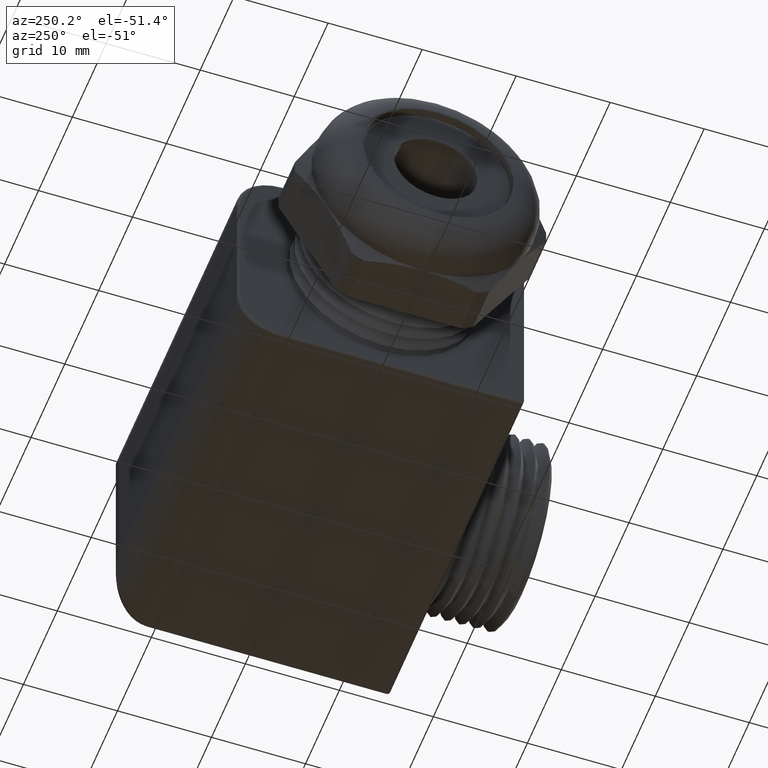
[diagram: clean part render]
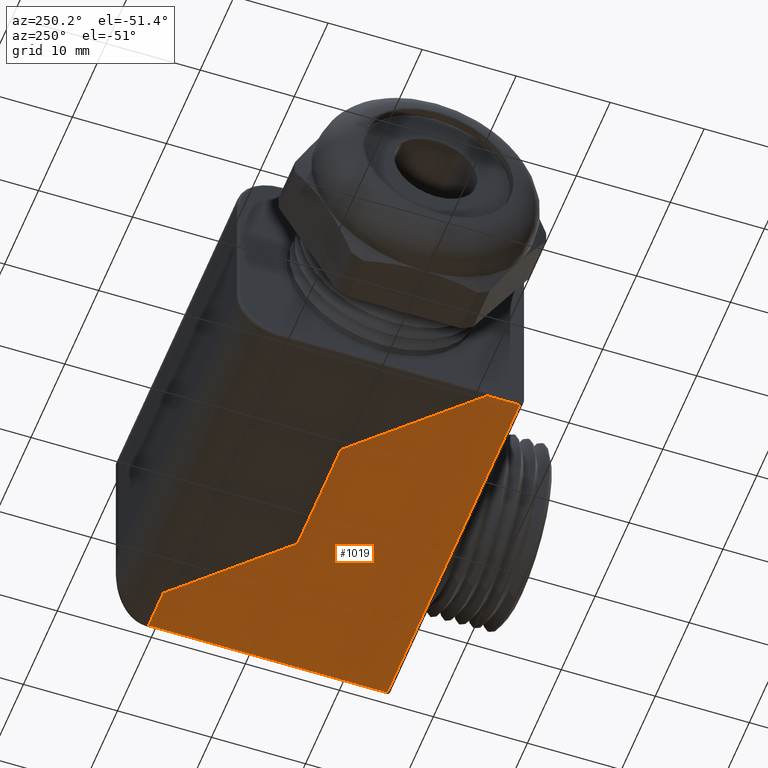
[diagram: same view with one face highlighted and labeled with its STEP entity id]
A machine part, auxiliary view. The second image highlights one B-rep face of the part: STEP entity #1019.
In plain terms, the highlighted planar face has unit normal (0, 0, 1).
Its self-contained STEP definition (entity closure, byte-faithful):
#877 = VERTEX_POINT ( 'NONE', #3125 ) ;
#1001 = EDGE_CURVE ( 'NONE', #1029, #1235, #3208, .T. ) ;
#1002 = ORIENTED_EDGE ( 'NONE', *, *, #1234, .F. ) ;
#1003 = ORIENTED_EDGE ( 'NONE', *, *, #1343, .F. ) ;
#1015 = EDGE_CURVE ( 'NONE', #877, #1029, #3186, .T. ) ;
#1018 = EDGE_LOOP ( 'NONE', ( #1023, #1026, #1034, #1021, #1022, #1002, #1003 ) ) ;
#1019 = ADVANCED_FACE ( 'NONE', ( #3199 ), #3198, .F. ) ;
#1021 = ORIENTED_EDGE ( 'NONE', *, *, #1015, .T. ) ;
#1022 = ORIENTED_EDGE ( 'NONE', *, *, #1001, .T. ) ;
#1023 = ORIENTED_EDGE ( 'NONE', *, *, #1223, .F. ) ;
#1024 = EDGE_CURVE ( 'NONE', #1033, #877, #3332, .T. ) ;
#1026 = ORIENTED_EDGE ( 'NONE', *, *, #1027, .T. ) ;
#1027 = EDGE_CURVE ( 'NONE', #1143, #1033, #3327, .T. ) ;
#1029 = VERTEX_POINT ( 'NONE', #3318 ) ;
#1033 = VERTEX_POINT ( 'NONE', #3367 ) ;
#1034 = ORIENTED_EDGE ( 'NONE', *, *, #1024, .T. ) ;
#1143 = VERTEX_POINT ( 'NONE', #3601 ) ;
#1150 = VERTEX_POINT ( 'NONE', #3568 ) ;
#1223 = EDGE_CURVE ( 'NONE', #1143, #1150, #3611, .T. ) ;
#1232 = VERTEX_POINT ( 'NONE', #3812 ) ;
#1234 = EDGE_CURVE ( 'NONE', #1232, #1235, #3762, .T. ) ;
#1235 = VERTEX_POINT ( 'NONE', #3819 ) ;
#1343 = EDGE_CURVE ( 'NONE', #1150, #1232, #3959, .T. ) ;
#3125 = CARTESIAN_POINT ( 'NONE',  ( 1.555344632768362000, -0.5873446327683615700, -0.4700000000000000300 ) ) ;
#3186 = LINE ( 'NONE', #3202, #3201 ) ;
#3194 = DIRECTION ( 'NONE',  ( 1.000000000000000000, 0.0000000000000000000, 0.0000000000000000000 ) ) ;
#3195 = DIRECTION ( 'NONE',  ( 0.0000000000000000000, 0.0000000000000000000, 1.000000000000000000 ) ) ;
#3196 = CARTESIAN_POINT ( 'NONE',  ( 1.232614984114216400, -0.2370589800028675700, -0.4700000000000000300 ) ) ;
#3197 = AXIS2_PLACEMENT_3D ( 'NONE', #3196, #3195, #3194 ) ;
#3198 = PLANE ( 'NONE',  #3197 ) ;
#3199 = FACE_OUTER_BOUND ( 'NONE', #1018, .T. ) ;
#3200 = DIRECTION ( 'NONE',  ( -1.000000000000000000, -1.306687496969513600E-016, 0.0000000000000000000 ) ) ;
#3201 = VECTOR ( 'NONE', #3200, 39.37007874015748100 ) ;
#3202 = CARTESIAN_POINT ( 'NONE',  ( 0.0000000000000000000, -0.5873446327683616900, -0.4700000000000000300 ) ) ;
#3205 = DIRECTION ( 'NONE',  ( 0.0000000000000000000, 1.000000000000000000, 0.0000000000000000000 ) ) ;
#3206 = VECTOR ( 'NONE', #3205, 39.37007874015748100 ) ;
#3207 = CARTESIAN_POINT ( 'NONE',  ( 0.01265536723163842100, -0.2370589800028675700, -0.4700000000000000300 ) ) ;
#3208 = LINE ( 'NONE', #3207, #3206 ) ;
#3318 = CARTESIAN_POINT ( 'NONE',  ( 0.01265536723163842100, -0.5873446327683616900, -0.4700000000000000300 ) ) ;
#3319 = DIRECTION ( 'NONE',  ( 1.000000000000000000, 0.0000000000000000000, 0.0000000000000000000 ) ) ;
#3320 = VECTOR ( 'NONE', #3319, 39.37007874015748100 ) ;
#3321 = CARTESIAN_POINT ( 'NONE',  ( 1.232614984114216400, 0.4133333333333332200, -0.4700000000000000300 ) ) ;
#3327 = LINE ( 'NONE', #3321, #3320 ) ;
#3329 = DIRECTION ( 'NONE',  ( 2.276539994720220300E-016, -1.000000000000000000, 0.0000000000000000000 ) ) ;
#3330 = VECTOR ( 'NONE', #3329, 39.37007874015748100 ) ;
#3331 = CARTESIAN_POINT ( 'NONE',  ( 1.555344632768362000, -0.5999999999999998700, -0.4700000000000000300 ) ) ;
#3332 = LINE ( 'NONE', #3331, #3330 ) ;
#3367 = CARTESIAN_POINT ( 'NONE',  ( 1.555344632768361800, 0.4133333333333332200, -0.4700000000000000300 ) ) ;
#3527 = VECTOR ( 'NONE', #3529, 39.37007874015748100 ) ;
#3529 = DIRECTION ( 'NONE',  ( -0.7071067811865512400, -0.7071067811865438000, 0.0000000000000000000 ) ) ;
#3568 = CARTESIAN_POINT ( 'NONE',  ( 0.9679999999999952000, -6.137788176939977500E-018, -0.4700000000000000300 ) ) ;
#3601 = CARTESIAN_POINT ( 'NONE',  ( 1.381333333333332900, 0.4133333333333332200, -0.4700000000000000300 ) ) ;
#3606 = CARTESIAN_POINT ( 'NONE',  ( 0.9817780020556733400, 0.01377800205567806400, -0.4700000000000000300 ) ) ;
#3611 = LINE ( 'NONE', #3606, #3527 ) ;
#3762 = LINE ( 'NONE', #3838, #3821 ) ;
#3812 = CARTESIAN_POINT ( 'NONE',  ( 0.4639999999999951900, -1.024442997624098700E-016, -0.4700000000000000300 ) ) ;
#3819 = CARTESIAN_POINT ( 'NONE',  ( 0.01265536723163842100, -0.4513446327683519100, -0.4700000000000000300 ) ) ;
#3820 = DIRECTION ( 'NONE',  ( -0.7071067811865512400, -0.7071067811865436900, 0.0000000000000000000 ) ) ;
#3821 = VECTOR ( 'NONE', #3820, 39.37007874015748900 ) ;
#3838 = CARTESIAN_POINT ( 'NONE',  ( 0.7297780020556762200, 0.2657780020556780300, -0.4700000000000000300 ) ) ;
#3958 = CARTESIAN_POINT ( 'NONE',  ( 1.232614984114216400, 0.0000000000000000000, -0.4700000000000000300 ) ) ;
#3959 = LINE ( 'NONE', #3958, #3978 ) ;
#3977 = DIRECTION ( 'NONE',  ( -1.000000000000000000, -2.319516484482451600E-017, 0.0000000000000000000 ) ) ;
#3978 = VECTOR ( 'NONE', #3977, 39.37007874015748100 ) ;